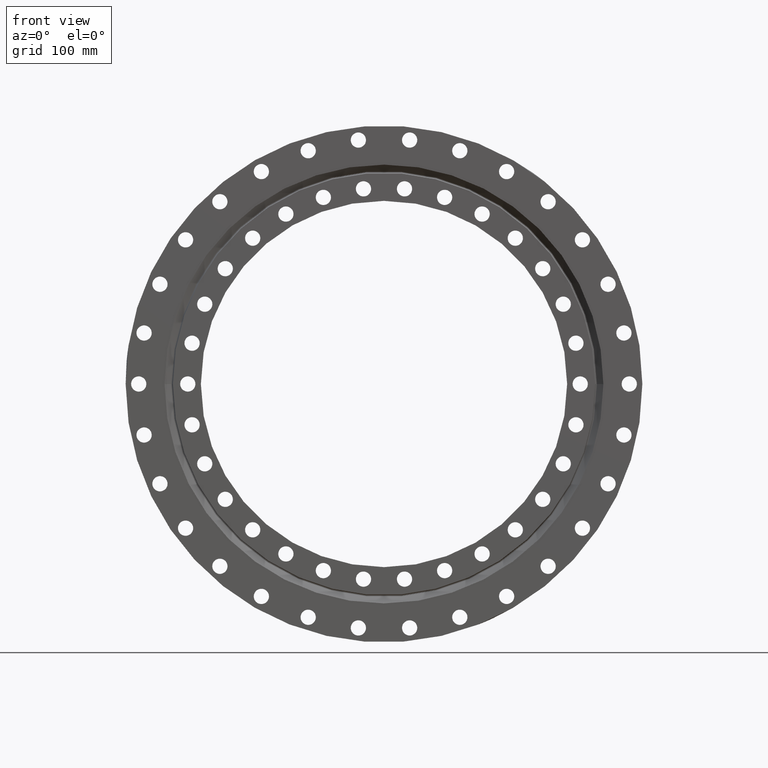
[diagram: clean part render]
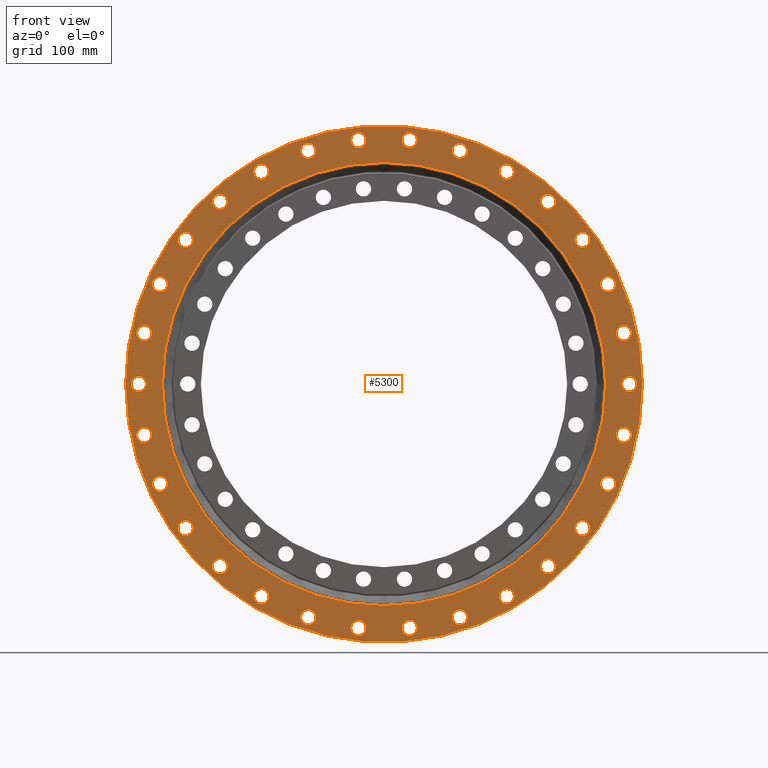
[diagram: same view with one face highlighted and labeled with its STEP entity id]
A machine part, front view. The second image highlights one B-rep face of the part: STEP entity #5300.
In plain terms, the highlighted planar face has unit normal (0, 1, 0).
Its self-contained STEP definition (entity closure, byte-faithful):
#12 = DIRECTION ( 'NONE',  ( 0.0000000000000000000, 1.000000000000000000, 0.0000000000000000000 ) ) ;
#16 = FACE_BOUND ( 'NONE', #5511, .T. ) ;
#19 = CARTESIAN_POINT ( 'NONE',  ( -212.5477279695850800, -23.00000000000001400, 91.51574469205549200 ) ) ;
#29 = AXIS2_PLACEMENT_3D ( 'NONE', #1742, #1889, #3534 ) ;
#56 = CIRCLE ( 'NONE', #4598, 6.999999999999981300 ) ;
#58 = CIRCLE ( 'NONE', #5604, 6.999999999999990200 ) ;
#76 = DIRECTION ( 'NONE',  ( 0.8090169943749511100, 0.0000000000000000000, -0.5877852522924680300 ) ) ;
#89 = FACE_BOUND ( 'NONE', #2477, .T. ) ;
#115 = FACE_BOUND ( 'NONE', #758, .T. ) ;
#118 = DIRECTION ( 'NONE',  ( 0.0000000000000000000, 1.000000000000000000, 0.0000000000000000000 ) ) ;
#128 = DIRECTION ( 'NONE',  ( 0.0000000000000000000, 1.000000000000000000, 0.0000000000000000000 ) ) ;
#143 = ORIENTED_EDGE ( 'NONE', *, *, #4676, .T. ) ;
#155 = FACE_BOUND ( 'NONE', #4595, .T. ) ;
#163 = FACE_BOUND ( 'NONE', #3980, .T. ) ;
#178 = FACE_BOUND ( 'NONE', #6239, .T. ) ;
#184 = FACE_BOUND ( 'NONE', #283, .T. ) ;
#188 = EDGE_CURVE ( 'NONE', #5920, #3882, #1013, .T. ) ;
#198 = VERTEX_POINT ( 'NONE', #6095 ) ;
#199 = ORIENTED_EDGE ( 'NONE', *, *, #1154, .T. ) ;
#203 = EDGE_CURVE ( 'NONE', #5819, #6373, #4315, .T. ) ;
#216 = DIRECTION ( 'NONE',  ( -0.6691306063588581300, 0.0000000000000000000, -0.7431448254773941300 ) ) ;
#220 = CARTESIAN_POINT ( 'NONE',  ( -119.5000000000023900, -23.00000000000001400, -194.8557158514973400 ) ) ;
#221 = FACE_BOUND ( 'NONE', #1783, .T. ) ;
#224 = CIRCLE ( 'NONE', #5636, 6.999999999999992000 ) ;
#225 = FACE_BOUND ( 'NONE', #7242, .T. ) ;
#228 = FACE_BOUND ( 'NONE', #6627, .T. ) ;
#229 = DIRECTION ( 'NONE',  ( 0.0000000000000000000, 1.000000000000000000, 0.0000000000000000000 ) ) ;
#232 = FACE_BOUND ( 'NONE', #5626, .T. ) ;
#233 = CARTESIAN_POINT ( 'NONE',  ( -150.5543864307452700, -23.00000000000001400, -167.2075857324117900 ) ) ;
#235 = FACE_BOUND ( 'NONE', #4024, .T. ) ;
#237 = DIRECTION ( 'NONE',  ( 0.0000000000000000000, 1.000000000000000000, 0.0000000000000000000 ) ) ;
#238 = CARTESIAN_POINT ( 'NONE',  ( -69.52882373436230500, -23.00000000000001400, 213.9877161664098300 ) ) ;
#243 = FACE_BOUND ( 'NONE', #1821, .T. ) ;
#244 = ORIENTED_EDGE ( 'NONE', *, *, #2044, .T. ) ;
#249 = FACE_BOUND ( 'NONE', #753, .T. ) ;
#251 = AXIS2_PLACEMENT_3D ( 'NONE', #2510, #1657, #2532 ) ;
#262 = CIRCLE ( 'NONE', #4697, 6.999999999999983100 ) ;
#269 = VERTEX_POINT ( 'NONE', #5905 ) ;
#275 = FACE_BOUND ( 'NONE', #616, .T. ) ;
#276 = EDGE_CURVE ( 'NONE', #3420, #4411, #4854, .T. ) ;
#283 = EDGE_LOOP ( 'NONE', ( #7147, #7272 ) ) ;
#287 = FACE_BOUND ( 'NONE', #2543, .T. ) ;
#290 = DIRECTION ( 'NONE',  ( 0.0000000000000000000, 1.000000000000000000, 0.0000000000000000000 ) ) ;
#293 = FACE_BOUND ( 'NONE', #2451, .T. ) ;
#298 = FACE_BOUND ( 'NONE', #4035, .T. ) ;
#309 = EDGE_CURVE ( 'NONE', #2335, #5018, #3687, .T. ) ;
#317 = DIRECTION ( 'NONE',  ( -0.9135454576426064200, 0.0000000000000000000, 0.4067366430757879400 ) ) ;
#321 = CARTESIAN_POINT ( 'NONE',  ( -205.5477279695850500, -23.00000000000001400, 91.51574469205549200 ) ) ;
#325 = DIRECTION ( 'NONE',  ( 0.0000000000000000000, 1.000000000000000000, 0.0000000000000000000 ) ) ;
#350 = FACE_BOUND ( 'NONE', #5022, .T. ) ;
#351 = CARTESIAN_POINT ( 'NONE',  ( -112.4999999999994500, -23.00000000000001400, 194.8557158514990100 ) ) ;
#354 = AXIS2_PLACEMENT_3D ( 'NONE', #4645, #4363, #4392 ) ;
#361 = AXIS2_PLACEMENT_3D ( 'NONE', #4042, #3958, #3948 ) ;
#362 = DIRECTION ( 'NONE',  ( -0.3090169943749564400, 0.0000000000000000000, 0.9510565162951506400 ) ) ;
#364 = AXIS2_PLACEMENT_3D ( 'NONE', #351, #3146, #4159 ) ;
#379 = CARTESIAN_POINT ( 'NONE',  ( 23.51890423522307600, -23.00000000000001400, 223.7674264578614000 ) ) ;
#382 = DIRECTION ( 'NONE',  ( 0.1045284632676436200, 0.0000000000000000000, 0.9945218953682744000 ) ) ;
#386 = ORIENTED_EDGE ( 'NONE', *, *, #6661, .T. ) ;
#388 = EDGE_CURVE ( 'NONE', #5339, #5926, #224, .T. ) ;
#390 = DIRECTION ( 'NONE',  ( 0.0000000000000000000, 1.000000000000000000, 0.0000000000000000000 ) ) ;
#409 = VERTEX_POINT ( 'NONE', #19 ) ;
#415 = CARTESIAN_POINT ( 'NONE',  ( -16.51890423522460300, -23.00000000000001400, -223.7674264578612900 ) ) ;
#462 = EDGE_CURVE ( 'NONE', #3639, #2593, #4586, .T. ) ;
#464 = CIRCLE ( 'NONE', #4783, 6.999999999999997300 ) ;
#470 = CARTESIAN_POINT ( 'NONE',  ( 198.5477279695858500, -23.00000000000001400, 91.51574469205360200 ) ) ;
#496 = VERTEX_POINT ( 'NONE', #3245 ) ;
#511 = CIRCLE ( 'NONE', #2926, 7.000000000000006200 ) ;
#516 = CIRCLE ( 'NONE', #5550, 6.999999999999993800 ) ;
#524 = CARTESIAN_POINT ( 'NONE',  ( -119.4999999999994500, -23.00000000000001400, 194.8557158514990100 ) ) ;
#525 = CARTESIAN_POINT ( 'NONE',  ( 16.51890423521959400, -23.00000000000001400, -223.7674264578617500 ) ) ;
#575 = DIRECTION ( 'NONE',  ( 0.0000000000000000000, 1.000000000000000000, 0.0000000000000000000 ) ) ;
#579 = ORIENTED_EDGE ( 'NONE', *, *, #4967, .T. ) ;
#582 = EDGE_LOOP ( 'NONE', ( #2032, #3148 ) ) ;
#584 = DIRECTION ( 'NONE',  ( 0.3090169943749391800, 0.0000000000000000000, 0.9510565162951562000 ) ) ;
#590 = CARTESIAN_POINT ( 'NONE',  ( 69.52882373436422400, -23.00000000000001400, 213.9877161664092000 ) ) ;
#616 = EDGE_LOOP ( 'NONE', ( #4091, #4623 ) ) ;
#622 = EDGE_CURVE ( 'NONE', #2593, #3639, #6958, .T. ) ;
#625 = CIRCLE ( 'NONE', #4982, 6.999999999999998200 ) ;
#638 = DIRECTION ( 'NONE',  ( 0.0000000000000000000, 1.000000000000000000, 0.0000000000000000000 ) ) ;
#639 = VERTEX_POINT ( 'NONE', #2708 ) ;
#658 = CIRCLE ( 'NONE', #5081, 6.999999999999995600 ) ;
#662 = CARTESIAN_POINT ( 'NONE',  ( -76.52882373436571600, -23.00000000000001400, -213.9877161664087500 ) ) ;
#686 = EDGE_CURVE ( 'NONE', #6385, #5605, #6680, .T. ) ;
#691 = AXIS2_PLACEMENT_3D ( 'NONE', #238, #4642, #362 ) ;
#719 = VERTEX_POINT ( 'NONE', #4265 ) ;
#728 = AXIS2_PLACEMENT_3D ( 'NONE', #3287, #4616, #7241 ) ;
#741 = AXIS2_PLACEMENT_3D ( 'NONE', #3588, #290, #6915 ) ;
#749 = CARTESIAN_POINT ( 'NONE',  ( 143.5543864307441000, -23.00000000000001400, 167.2075857324128100 ) ) ;
#753 = EDGE_LOOP ( 'NONE', ( #4365, #4369 ) ) ;
#757 = DIRECTION ( 'NONE',  ( -0.1045284632676636300, 0.0000000000000000000, 0.9945218953682721800 ) ) ;
#758 = EDGE_LOOP ( 'NONE', ( #6951, #6646 ) ) ;
#762 = DIRECTION ( 'NONE',  ( 0.0000000000000000000, 1.000000000000000000, 0.0000000000000000000 ) ) ;
#763 = CARTESIAN_POINT ( 'NONE',  ( -23.51890423522105100, -23.00000000000001400, 223.7674264578616000 ) ) ;
#858 = AXIS2_PLACEMENT_3D ( 'NONE', #3900, #3889, #2687 ) ;
#868 = ORIENTED_EDGE ( 'NONE', *, *, #4258, .T. ) ;
#900 = CARTESIAN_POINT ( 'NONE',  ( -198.5477279695850500, -23.00000000000001400, 91.51574469205549200 ) ) ;
#901 = AXIS2_PLACEMENT_3D ( 'NONE', #4583, #4171, #4502 ) ;
#926 = VERTEX_POINT ( 'NONE', #4740 ) ;
#968 = EDGE_CURVE ( 'NONE', #1182, #1699, #7009, .T. ) ;
#969 = DIRECTION ( 'NONE',  ( -0.3090169943749564400, 0.0000000000000000000, 0.9510565162951506400 ) ) ;
#987 = VERTEX_POINT ( 'NONE', #5401 ) ;
#991 = VERTEX_POINT ( 'NONE', #5464 ) ;
#996 = DIRECTION ( 'NONE',  ( 0.0000000000000000000, 1.000000000000000000, 0.0000000000000000000 ) ) ;
#1003 = CARTESIAN_POINT ( 'NONE',  ( 16.51890423522308600, -23.00000000000001400, 223.7674264578614000 ) ) ;
#1013 = CIRCLE ( 'NONE', #7071, 7.000000000000000900 ) ;
#1023 = CARTESIAN_POINT ( 'NONE',  ( 150.5543864307441300, -23.00000000000001400, 167.2075857324128100 ) ) ;
#1044 = VERTEX_POINT ( 'NONE', #6589 ) ;
#1049 = CIRCLE ( 'NONE', #5304, 6.999999999999992000 ) ;
#1057 = CARTESIAN_POINT ( 'NONE',  ( -69.52882373436230500, -23.00000000000001400, 213.9877161664098300 ) ) ;
#1101 = DIRECTION ( 'NONE',  ( 0.6691306063588519100, 0.0000000000000000000, 0.7431448254773999100 ) ) ;
#1104 = VERTEX_POINT ( 'NONE', #6847 ) ;
#1109 = EDGE_CURVE ( 'NONE', #3901, #5224, #6753, .T. ) ;
#1121 = EDGE_CURVE ( 'NONE', #4305, #3821, #3850, .T. ) ;
#1139 = AXIS2_PLACEMENT_3D ( 'NONE', #2996, #4267, #3615 ) ;
#1154 = EDGE_CURVE ( 'NONE', #5938, #6540, #5729, .T. ) ;
#1182 = VERTEX_POINT ( 'NONE', #6952 ) ;
#1198 = CARTESIAN_POINT ( 'NONE',  ( 157.5543864307441300, -23.00000000000001400, 167.2075857324128100 ) ) ;
#1224 = CARTESIAN_POINT ( 'NONE',  ( 62.52882373436095500, -23.00000000000001400, -213.9877161664102800 ) ) ;
#1227 = CIRCLE ( 'NONE', #5436, 6.999999999999983100 ) ;
#1231 = AXIS2_PLACEMENT_3D ( 'NONE', #4010, #7152, #7183 ) ;
#1241 = CIRCLE ( 'NONE', #6308, 7.000000000000001800 ) ;
#1251 = EDGE_CURVE ( 'NONE', #5224, #3901, #7061, .T. ) ;
#1282 = ORIENTED_EDGE ( 'NONE', *, *, #5694, .T. ) ;
#1291 = CARTESIAN_POINT ( 'NONE',  ( -30.51890423522104400, -23.00000000000001400, 223.7674264578616000 ) ) ;
#1304 = ORIENTED_EDGE ( 'NONE', *, *, #4243, .T. ) ;
#1308 = CARTESIAN_POINT ( 'NONE',  ( 69.52882373436095500, -23.00000000000001400, -213.9877161664102800 ) ) ;
#1330 = DIRECTION ( 'NONE',  ( 0.9135454576426033100, 0.0000000000000000000, -0.4067366430757943800 ) ) ;
#1340 = DIRECTION ( 'NONE',  ( 0.0000000000000000000, 1.000000000000000000, 0.0000000000000000000 ) ) ;
#1346 = CARTESIAN_POINT ( 'NONE',  ( 205.5477279695844300, -23.00000000000001400, -91.51574469205682800 ) ) ;
#1349 = CARTESIAN_POINT ( 'NONE',  ( 30.51890423522306900, -23.00000000000001400, 223.7674264578614000 ) ) ;
#1384 = VERTEX_POINT ( 'NONE', #2890 ) ;
#1393 = AXIS2_PLACEMENT_3D ( 'NONE', #4433, #4481, #4546 ) ;
#1401 = EDGE_CURVE ( 'NONE', #269, #639, #5449, .T. ) ;
#1423 = CARTESIAN_POINT ( 'NONE',  ( -213.0832101651061500, -23.00000000000001400, 46.78013043399624100 ) ) ;
#1424 = EDGE_CURVE ( 'NONE', #4652, #4736, #5334, .T. ) ;
#1431 = CIRCLE ( 'NONE', #6528, 6.999999999999998200 ) ;
#1436 = VERTEX_POINT ( 'NONE', #2940 ) ;
#1477 = EDGE_LOOP ( 'NONE', ( #3816, #2175 ) ) ;
#1486 = DIRECTION ( 'NONE',  ( -0.9781476007338083500, 0.0000000000000000000, 0.2079116908177463000 ) ) ;
#1504 = CIRCLE ( 'NONE', #6697, 6.999999999999992000 ) ;
#1505 = CARTESIAN_POINT ( 'NONE',  ( -112.5000000000023900, -23.00000000000001400, -194.8557158514973400 ) ) ;
#1519 = EDGE_CURVE ( 'NONE', #4647, #2367, #4929, .T. ) ;
#1525 = VERTEX_POINT ( 'NONE', #4151 ) ;
#1538 = VERTEX_POINT ( 'NONE', #1423 ) ;
#1565 = EDGE_LOOP ( 'NONE', ( #6771, #4661 ) ) ;
#1627 = VERTEX_POINT ( 'NONE', #1291 ) ;
#1630 = FACE_BOUND ( 'NONE', #1778, .T. ) ;
#1642 = CARTESIAN_POINT ( 'NONE',  ( -150.5543864307426800, -23.00000000000001400, 167.2075857324140900 ) ) ;
#1657 = DIRECTION ( 'NONE',  ( 0.0000000000000000000, 1.000000000000000000, 0.0000000000000000000 ) ) ;
#1660 = EDGE_LOOP ( 'NONE', ( #3574, #3655 ) ) ;
#1667 = ORIENTED_EDGE ( 'NONE', *, *, #2406, .T. ) ;
#1699 = VERTEX_POINT ( 'NONE', #4557 ) ;
#1704 = CIRCLE ( 'NONE', #6930, 6.999999999999980500 ) ;
#1733 = ORIENTED_EDGE ( 'NONE', *, *, #5071, .T. ) ;
#1736 = EDGE_CURVE ( 'NONE', #3381, #987, #3493, .T. ) ;
#1738 = ORIENTED_EDGE ( 'NONE', *, *, #3205, .T. ) ;
#1742 = CARTESIAN_POINT ( 'NONE',  ( -182.0288237343628500, -23.00000000000001400, 132.2516817658068600 ) ) ;
#1758 = FACE_BOUND ( 'NONE', #1477, .T. ) ;
#1778 = EDGE_LOOP ( 'NONE', ( #5814, #1949 ) ) ;
#1783 = EDGE_LOOP ( 'NONE', ( #244, #4806 ) ) ;
#1786 = CIRCLE ( 'NONE', #7038, 7.000000000000006200 ) ;
#1790 = CARTESIAN_POINT ( 'NONE',  ( -220.0832101651061500, -23.00000000000001400, 46.78013043399624100 ) ) ;
#1802 = AXIS2_PLACEMENT_3D ( 'NONE', #5893, #5861, #5868 ) ;
#1811 = EDGE_CURVE ( 'NONE', #4511, #3961, #3308, .T. ) ;
#1817 = EDGE_CURVE ( 'NONE', #4116, #6575, #3248, .T. ) ;
#1821 = EDGE_LOOP ( 'NONE', ( #4269, #2436 ) ) ;
#1823 = AXIS2_PLACEMENT_3D ( 'NONE', #5904, #5897, #5892 ) ;
#1837 = AXIS2_PLACEMENT_3D ( 'NONE', #6131, #6157, #6168 ) ;
#1889 = DIRECTION ( 'NONE',  ( 0.0000000000000000000, 1.000000000000000000, 0.0000000000000000000 ) ) ;
#1892 = DIRECTION ( 'NONE',  ( 0.0000000000000000000, 1.000000000000000000, 0.0000000000000000000 ) ) ;
#1896 = FACE_BOUND ( 'NONE', #2151, .T. ) ;
#1898 = DIRECTION ( 'NONE',  ( -0.6691306063588581300, 0.0000000000000000000, -0.7431448254773941300 ) ) ;
#1917 = CARTESIAN_POINT ( 'NONE',  ( -205.5477279695864500, -23.00000000000001400, -91.51574469205225200 ) ) ;
#1921 = CARTESIAN_POINT ( 'NONE',  ( -182.0288237343628500, -23.00000000000001400, 132.2516817658068600 ) ) ;
#1927 = DIRECTION ( 'NONE',  ( -0.9135454576426005300, 0.0000000000000000000, -0.4067366430758008700 ) ) ;
#1929 = CARTESIAN_POINT ( 'NONE',  ( 227.0832101651058400, -23.00000000000001400, -46.78013043399769100 ) ) ;
#1935 = EDGE_CURVE ( 'NONE', #5926, #5339, #2527, .T. ) ;
#1937 = CIRCLE ( 'NONE', #7286, 6.999999999999992900 ) ;
#1939 = DIRECTION ( 'NONE',  ( -0.8090169943749543300, 0.0000000000000000000, 0.5877852522924635900 ) ) ;
#1949 = ORIENTED_EDGE ( 'NONE', *, *, #1401, .T. ) ;
#1958 = DIRECTION ( 'NONE',  ( 0.0000000000000000000, 1.000000000000000000, 0.0000000000000000000 ) ) ;
#1967 = EDGE_CURVE ( 'NONE', #2682, #991, #2454, .T. ) ;
#1968 = DIRECTION ( 'NONE',  ( 0.0000000000000000000, 1.000000000000000000, 0.0000000000000000000 ) ) ;
#1988 = CIRCLE ( 'NONE', #6200, 6.999999999999984900 ) ;
#2006 = CARTESIAN_POINT ( 'NONE',  ( -182.0288237343649200, -23.00000000000001400, -132.2516817658040500 ) ) ;
#2032 = ORIENTED_EDGE ( 'NONE', *, *, #3125, .T. ) ;
#2037 = CIRCLE ( 'NONE', #6360, 203.2500000000000000 ) ;
#2043 = DIRECTION ( 'NONE',  ( 0.0000000000000000000, 1.000000000000000000, 0.0000000000000000000 ) ) ;
#2044 = EDGE_CURVE ( 'NONE', #6575, #4116, #2037, .T. ) ;
#2052 = CARTESIAN_POINT ( 'NONE',  ( -23.51890423522105100, -23.00000000000001400, 223.7674264578616000 ) ) ;
#2057 = FACE_OUTER_BOUND ( 'NONE', #1565, .T. ) ;
#2075 = DIRECTION ( 'NONE',  ( -0.1045284632676636300, 0.0000000000000000000, 0.9945218953682721800 ) ) ;
#2083 = EDGE_CURVE ( 'NONE', #6373, #5819, #1988, .T. ) ;
#2113 = CARTESIAN_POINT ( 'NONE',  ( 62.52882373436423100, -23.00000000000001400, 213.9877161664092000 ) ) ;
#2137 = AXIS2_PLACEMENT_3D ( 'NONE', #1505, #6087, #6086 ) ;
#2151 = EDGE_LOOP ( 'NONE', ( #868, #386 ) ) ;
#2158 = CIRCLE ( 'NONE', #251, 7.000000000000006200 ) ;
#2175 = ORIENTED_EDGE ( 'NONE', *, *, #2254, .T. ) ;
#2183 = AXIS2_PLACEMENT_3D ( 'NONE', #6245, #6234, #6241 ) ;
#2234 = CARTESIAN_POINT ( 'NONE',  ( 203.2500000000000000, -23.00000000000000700, 2.489094619266995000E-014 ) ) ;
#2235 = CIRCLE ( 'NONE', #364, 6.999999999999988500 ) ;
#2246 = DIRECTION ( 'NONE',  ( 0.3090169943749510600, 0.0000000000000000000, -0.9510565162951523100 ) ) ;
#2250 = DIRECTION ( 'NONE',  ( 0.0000000000000000000, 1.000000000000000000, 0.0000000000000000000 ) ) ;
#2254 = EDGE_CURVE ( 'NONE', #3179, #1627, #1227, .T. ) ;
#2268 = CARTESIAN_POINT ( 'NONE',  ( 0.0000000000000000000, -23.00000000000000700, 0.0000000000000000000 ) ) ;
#2270 = DIRECTION ( 'NONE',  ( 0.0000000000000000000, 1.000000000000000000, 0.0000000000000000000 ) ) ;
#2301 = CARTESIAN_POINT ( 'NONE',  ( -105.5000000000024000, -23.00000000000001400, -194.8557158514973400 ) ) ;
#2302 = FACE_BOUND ( 'NONE', #2925, .T. ) ;
#2303 = EDGE_CURVE ( 'NONE', #2537, #719, #1049, .T. ) ;
#2335 = VERTEX_POINT ( 'NONE', #525 ) ;
#2352 = DIRECTION ( 'NONE',  ( 0.0000000000000000000, 1.000000000000000000, 0.0000000000000000000 ) ) ;
#2362 = VERTEX_POINT ( 'NONE', #524 ) ;
#2367 = VERTEX_POINT ( 'NONE', #662 ) ;
#2378 = PLANE ( 'NONE',  #5094 ) ;
#2406 = EDGE_CURVE ( 'NONE', #6540, #5938, #658, .T. ) ;
#2422 = EDGE_CURVE ( 'NONE', #6066, #409, #625, .T. ) ;
#2436 = ORIENTED_EDGE ( 'NONE', *, *, #188, .T. ) ;
#2439 = DIRECTION ( 'NONE',  ( 0.0000000000000000000, 1.000000000000000000, 0.0000000000000000000 ) ) ;
#2441 = DIRECTION ( 'NONE',  ( 0.6691306063588624600, 0.0000000000000000000, -0.7431448254773905800 ) ) ;
#2446 = CARTESIAN_POINT ( 'NONE',  ( 150.5543864307414900, -23.00000000000001400, -167.2075857324151400 ) ) ;
#2451 = EDGE_LOOP ( 'NONE', ( #5424, #5203 ) ) ;
#2454 = CIRCLE ( 'NONE', #6475, 6.999999999999997300 ) ;
#2477 = EDGE_LOOP ( 'NONE', ( #6334, #6856 ) ) ;
#2487 = DIRECTION ( 'NONE',  ( -0.3090169943749445100, 0.0000000000000000000, -0.9510565162951545300 ) ) ;
#2496 = CARTESIAN_POINT ( 'NONE',  ( -150.5543864307452700, -23.00000000000001400, -167.2075857324117900 ) ) ;
#2497 = EDGE_CURVE ( 'NONE', #991, #2682, #464, .T. ) ;
#2506 = VERTEX_POINT ( 'NONE', #220 ) ;
#2508 = DIRECTION ( 'NONE',  ( 0.0000000000000000000, 1.000000000000000000, 0.0000000000000000000 ) ) ;
#2510 = CARTESIAN_POINT ( 'NONE',  ( 225.0000000000000000, -23.00000000000001400, -1.703991320164801800E-012 ) ) ;
#2516 = CARTESIAN_POINT ( 'NONE',  ( -69.52882373436573000, -23.00000000000001400, -213.9877161664087500 ) ) ;
#2524 = AXIS2_PLACEMENT_3D ( 'NONE', #6872, #6880, #6849 ) ;
#2527 = CIRCLE ( 'NONE', #6605, 6.999999999999992000 ) ;
#2532 = DIRECTION ( 'NONE',  ( 1.000000000000000000, 0.0000000000000000000, 6.982962677686261200E-015 ) ) ;
#2535 = EDGE_CURVE ( 'NONE', #1627, #3179, #262, .T. ) ;
#2537 = VERTEX_POINT ( 'NONE', #2113 ) ;
#2543 = EDGE_LOOP ( 'NONE', ( #5529, #5230 ) ) ;
#2572 = AXIS2_PLACEMENT_3D ( 'NONE', #7188, #7161, #7171 ) ;
#2583 = CARTESIAN_POINT ( 'NONE',  ( 220.0832101651058700, -23.00000000000001400, -46.78013043399769100 ) ) ;
#2587 = EDGE_CURVE ( 'NONE', #987, #3381, #56, .T. ) ;
#2593 = VERTEX_POINT ( 'NONE', #3451 ) ;
#2603 = DIRECTION ( 'NONE',  ( 0.0000000000000000000, 1.000000000000000000, 0.0000000000000000000 ) ) ;
#2619 = CARTESIAN_POINT ( 'NONE',  ( -205.5477279695864500, -23.00000000000001400, -91.51574469205225200 ) ) ;
#2636 = DIRECTION ( 'NONE',  ( 0.0000000000000000000, 1.000000000000000000, 0.0000000000000000000 ) ) ;
#2644 = FACE_BOUND ( 'NONE', #1660, .T. ) ;
#2654 = AXIS2_PLACEMENT_3D ( 'NONE', #7074, #7058, #7065 ) ;
#2666 = CIRCLE ( 'NONE', #691, 7.000000000000004400 ) ;
#2677 = CIRCLE ( 'NONE', #741, 6.999999999999980500 ) ;
#2678 = VERTEX_POINT ( 'NONE', #3184 ) ;
#2682 = VERTEX_POINT ( 'NONE', #3218 ) ;
#2687 = DIRECTION ( 'NONE',  ( -1.000000000000000000, 0.0000000000000000000, 0.0000000000000000000 ) ) ;
#2690 = CARTESIAN_POINT ( 'NONE',  ( 105.4999999999981100, -23.00000000000001400, -194.8557158514998700 ) ) ;
#2701 = AXIS2_PLACEMENT_3D ( 'NONE', #7107, #7117, #7099 ) ;
#2708 = CARTESIAN_POINT ( 'NONE',  ( -189.0288237343628700, -23.00000000000001400, 132.2516817658068600 ) ) ;
#2718 = FACE_BOUND ( 'NONE', #4605, .T. ) ;
#2730 = CARTESIAN_POINT ( 'NONE',  ( 69.52882373436095500, -23.00000000000001400, -213.9877161664102800 ) ) ;
#2752 = CIRCLE ( 'NONE', #728, 6.999999999999992000 ) ;
#2758 = CIRCLE ( 'NONE', #901, 7.000000000000006200 ) ;
#2781 = AXIS2_PLACEMENT_3D ( 'NONE', #7231, #7208, #7215 ) ;
#2853 = ORIENTED_EDGE ( 'NONE', *, *, #203, .T. ) ;
#2856 = DIRECTION ( 'NONE',  ( -0.5000000000000112100, 0.0000000000000000000, 0.8660254037844322700 ) ) ;
#2862 = DIRECTION ( 'NONE',  ( 0.5000000000000048800, 0.0000000000000000000, -0.8660254037844357100 ) ) ;
#2864 = CARTESIAN_POINT ( 'NONE',  ( -112.4999999999994500, -23.00000000000001400, 194.8557158514990100 ) ) ;
#2865 = DIRECTION ( 'NONE',  ( 0.0000000000000000000, 1.000000000000000000, 0.0000000000000000000 ) ) ;
#2890 = CARTESIAN_POINT ( 'NONE',  ( -227.0832101651061200, -23.00000000000001400, 46.78013043399624100 ) ) ;
#2913 = CARTESIAN_POINT ( 'NONE',  ( 112.4999999999981000, -23.00000000000001400, -194.8557158514998700 ) ) ;
#2914 = CARTESIAN_POINT ( 'NONE',  ( -62.52882373436573000, -23.00000000000001400, -213.9877161664087500 ) ) ;
#2915 = CIRCLE ( 'NONE', #1139, 7.000000000000004400 ) ;
#2925 = EDGE_LOOP ( 'NONE', ( #6637, #6155 ) ) ;
#2926 = AXIS2_PLACEMENT_3D ( 'NONE', #7210, #7239, #5386 ) ;
#2929 = DIRECTION ( 'NONE',  ( 0.0000000000000000000, 1.000000000000000000, 0.0000000000000000000 ) ) ;
#2934 = EDGE_CURVE ( 'NONE', #3648, #2362, #6505, .T. ) ;
#2938 = AXIS2_PLACEMENT_3D ( 'NONE', #4405, #6221, #7140 ) ;
#2940 = CARTESIAN_POINT ( 'NONE',  ( 175.0288237343639800, -23.00000000000001400, 132.2516817658053300 ) ) ;
#2964 = AXIS2_PLACEMENT_3D ( 'NONE', #5535, #5546, #5518 ) ;
#2972 = CARTESIAN_POINT ( 'NONE',  ( 143.5543864307414900, -23.00000000000001400, -167.2075857324151400 ) ) ;
#2996 = CARTESIAN_POINT ( 'NONE',  ( 182.0288237343639800, -23.00000000000001400, 132.2516817658053300 ) ) ;
#2997 = EDGE_LOOP ( 'NONE', ( #1733, #4212 ) ) ;
#3035 = ORIENTED_EDGE ( 'NONE', *, *, #4865, .T. ) ;
#3098 = CARTESIAN_POINT ( 'NONE',  ( 213.0832101651058700, -23.00000000000001400, -46.78013043399769100 ) ) ;
#3115 = EDGE_CURVE ( 'NONE', #5605, #6385, #6230, .T. ) ;
#3116 = DIRECTION ( 'NONE',  ( 0.0000000000000000000, 1.000000000000000000, 0.0000000000000000000 ) ) ;
#3119 = AXIS2_PLACEMENT_3D ( 'NONE', #5075, #237, #6448 ) ;
#3125 = EDGE_CURVE ( 'NONE', #198, #7082, #6199, .T. ) ;
#3132 = AXIS2_PLACEMENT_3D ( 'NONE', #5402, #5411, #5419 ) ;
#3146 = DIRECTION ( 'NONE',  ( 0.0000000000000000000, 1.000000000000000000, 0.0000000000000000000 ) ) ;
#3148 = ORIENTED_EDGE ( 'NONE', *, *, #4249, .T. ) ;
#3178 = AXIS2_PLACEMENT_3D ( 'NONE', #2446, #2439, #2441 ) ;
#3179 = VERTEX_POINT ( 'NONE', #4684 ) ;
#3184 = CARTESIAN_POINT ( 'NONE',  ( 198.5477279695844300, -23.00000000000001400, -91.51574469205682800 ) ) ;
#3198 = AXIS2_PLACEMENT_3D ( 'NONE', #1057, #3116, #969 ) ;
#3205 = EDGE_CURVE ( 'NONE', #5018, #2335, #6104, .T. ) ;
#3218 = CARTESIAN_POINT ( 'NONE',  ( -157.5543864307452700, -23.00000000000001400, -167.2075857324117900 ) ) ;
#3245 = CARTESIAN_POINT ( 'NONE',  ( -62.52882373436231900, -23.00000000000001400, 213.9877161664098300 ) ) ;
#3248 = CIRCLE ( 'NONE', #7129, 203.2500000000000000 ) ;
#3255 = DIRECTION ( 'NONE',  ( -0.9135454576426064200, 0.0000000000000000000, 0.4067366430757879400 ) ) ;
#3257 = EDGE_CURVE ( 'NONE', #2506, #5364, #5807, .T. ) ;
#3267 = EDGE_CURVE ( 'NONE', #3961, #4511, #5975, .T. ) ;
#3272 = AXIS2_PLACEMENT_3D ( 'NONE', #2864, #2865, #2856 ) ;
#3287 = CARTESIAN_POINT ( 'NONE',  ( 112.5000000000010100, -23.00000000000001400, 194.8557158514981000 ) ) ;
#3303 = EDGE_CURVE ( 'NONE', #4736, #4652, #5774, .T. ) ;
#3304 = ORIENTED_EDGE ( 'NONE', *, *, #7096, .T. ) ;
#3308 = CIRCLE ( 'NONE', #7177, 6.999999999999994700 ) ;
#3373 = CARTESIAN_POINT ( 'NONE',  ( -203.2500000000000000, -23.00000000000000700, 0.0000000000000000000 ) ) ;
#3380 = CIRCLE ( 'NONE', #1231, 6.999999999999990200 ) ;
#3381 = VERTEX_POINT ( 'NONE', #6619 ) ;
#3420 = VERTEX_POINT ( 'NONE', #6494 ) ;
#3451 = CARTESIAN_POINT ( 'NONE',  ( 237.0000000000000000, -23.00000000000001400, 2.902412913979226800E-014 ) ) ;
#3456 = DIRECTION ( 'NONE',  ( 0.0000000000000000000, 1.000000000000000000, 0.0000000000000000000 ) ) ;
#3474 = CIRCLE ( 'NONE', #1393, 7.000000000000000900 ) ;
#3484 = EDGE_CURVE ( 'NONE', #4395, #926, #5059, .T. ) ;
#3493 = CIRCLE ( 'NONE', #7229, 6.999999999999981300 ) ;
#3503 = CARTESIAN_POINT ( 'NONE',  ( 119.4999999999981000, -23.00000000000001400, -194.8557158514998700 ) ) ;
#3518 = FACE_BOUND ( 'NONE', #5279, .T. ) ;
#3519 = EDGE_CURVE ( 'NONE', #5364, #2506, #4954, .T. ) ;
#3524 = DIRECTION ( 'NONE',  ( 0.3090169943749510600, 0.0000000000000000000, -0.9510565162951523100 ) ) ;
#3534 = DIRECTION ( 'NONE',  ( -0.8090169943749543300, 0.0000000000000000000, 0.5877852522924635900 ) ) ;
#3539 = DIRECTION ( 'NONE',  ( 0.0000000000000000000, 1.000000000000000000, 0.0000000000000000000 ) ) ;
#3547 = CARTESIAN_POINT ( 'NONE',  ( -205.5477279695850500, -23.00000000000001400, 91.51574469205549200 ) ) ;
#3552 = ORIENTED_EDGE ( 'NONE', *, *, #2303, .T. ) ;
#3557 = VERTEX_POINT ( 'NONE', #6146 ) ;
#3574 = ORIENTED_EDGE ( 'NONE', *, *, #5023, .T. ) ;
#3588 = CARTESIAN_POINT ( 'NONE',  ( 150.5543864307441300, -23.00000000000001400, 167.2075857324128100 ) ) ;
#3615 = DIRECTION ( 'NONE',  ( 0.8090169943749427900, 0.0000000000000000000, 0.5877852522924795800 ) ) ;
#3632 = CARTESIAN_POINT ( 'NONE',  ( 30.51890423521958000, -23.00000000000001400, -223.7674264578617500 ) ) ;
#3639 = VERTEX_POINT ( 'NONE', #5805 ) ;
#3648 = VERTEX_POINT ( 'NONE', #5769 ) ;
#3655 = ORIENTED_EDGE ( 'NONE', *, *, #2422, .T. ) ;
#3656 = CARTESIAN_POINT ( 'NONE',  ( 69.52882373436422400, -23.00000000000001400, 213.9877161664092000 ) ) ;
#3687 = CIRCLE ( 'NONE', #3814, 7.000000000000005300 ) ;
#3697 = FACE_BOUND ( 'NONE', #5477, .T. ) ;
#3712 = EDGE_CURVE ( 'NONE', #1538, #1384, #4344, .T. ) ;
#3716 = EDGE_CURVE ( 'NONE', #1104, #1525, #4340, .T. ) ;
#3727 = ORIENTED_EDGE ( 'NONE', *, *, #388, .T. ) ;
#3732 = VERTEX_POINT ( 'NONE', #5914 ) ;
#3783 = CIRCLE ( 'NONE', #6699, 7.000000000000004400 ) ;
#3814 = AXIS2_PLACEMENT_3D ( 'NONE', #6541, #6584, #7011 ) ;
#3816 = ORIENTED_EDGE ( 'NONE', *, *, #2535, .T. ) ;
#3821 = VERTEX_POINT ( 'NONE', #6144 ) ;
#3847 = CIRCLE ( 'NONE', #6821, 7.000000000000004400 ) ;
#3850 = CIRCLE ( 'NONE', #3966, 7.000000000000006200 ) ;
#3882 = VERTEX_POINT ( 'NONE', #6787 ) ;
#3885 = CIRCLE ( 'NONE', #7138, 7.000000000000004400 ) ;
#3889 = DIRECTION ( 'NONE',  ( 0.0000000000000000000, 1.000000000000000000, 0.0000000000000000000 ) ) ;
#3900 = CARTESIAN_POINT ( 'NONE',  ( 0.0000000000000000000, -23.00000000000001400, 0.0000000000000000000 ) ) ;
#3901 = VERTEX_POINT ( 'NONE', #5020 ) ;
#3948 = DIRECTION ( 'NONE',  ( -1.000000000000000000, 0.0000000000000000000, 0.0000000000000000000 ) ) ;
#3958 = DIRECTION ( 'NONE',  ( 0.0000000000000000000, 1.000000000000000000, 0.0000000000000000000 ) ) ;
#3961 = VERTEX_POINT ( 'NONE', #4869 ) ;
#3966 = AXIS2_PLACEMENT_3D ( 'NONE', #6972, #6978, #6980 ) ;
#3980 = EDGE_LOOP ( 'NONE', ( #6169, #2853 ) ) ;
#4010 = CARTESIAN_POINT ( 'NONE',  ( 205.5477279695844300, -23.00000000000001400, -91.51574469205682800 ) ) ;
#4024 = EDGE_LOOP ( 'NONE', ( #6244, #1738 ) ) ;
#4034 = EDGE_CURVE ( 'NONE', #3882, #5920, #3474, .T. ) ;
#4035 = EDGE_LOOP ( 'NONE', ( #5297, #5627 ) ) ;
#4042 = CARTESIAN_POINT ( 'NONE',  ( 0.0000000000000000000, -23.00000000000001400, 0.0000000000000000000 ) ) ;
#4091 = ORIENTED_EDGE ( 'NONE', *, *, #5252, .T. ) ;
#4114 = EDGE_CURVE ( 'NONE', #2678, #7220, #3380, .T. ) ;
#4116 = VERTEX_POINT ( 'NONE', #2234 ) ;
#4146 = EDGE_CURVE ( 'NONE', #1436, #6885, #2915, .T. ) ;
#4151 = CARTESIAN_POINT ( 'NONE',  ( 213.0832101651066100, -23.00000000000001400, 46.78013043399424500 ) ) ;
#4159 = DIRECTION ( 'NONE',  ( -0.5000000000000112100, 0.0000000000000000000, 0.8660254037844322700 ) ) ;
#4171 = DIRECTION ( 'NONE',  ( 0.0000000000000000000, 1.000000000000000000, 0.0000000000000000000 ) ) ;
#4178 = DIRECTION ( 'NONE',  ( 0.0000000000000000000, 1.000000000000000000, 0.0000000000000000000 ) ) ;
#4187 = DIRECTION ( 'NONE',  ( -0.8090169943749477800, 0.0000000000000000000, -0.5877852522924725800 ) ) ;
#4199 = DIRECTION ( 'NONE',  ( 0.0000000000000000000, 1.000000000000000000, 0.0000000000000000000 ) ) ;
#4208 = CARTESIAN_POINT ( 'NONE',  ( 0.0000000000000000000, -23.00000000000000700, 0.0000000000000000000 ) ) ;
#4212 = ORIENTED_EDGE ( 'NONE', *, *, #3712, .T. ) ;
#4219 = DIRECTION ( 'NONE',  ( -1.000000000000000000, 0.0000000000000000000, 0.0000000000000000000 ) ) ;
#4238 = EDGE_CURVE ( 'NONE', #3821, #4305, #2758, .T. ) ;
#4243 = EDGE_CURVE ( 'NONE', #6673, #6659, #2677, .T. ) ;
#4249 = EDGE_CURVE ( 'NONE', #7082, #198, #2752, .T. ) ;
#4258 = EDGE_CURVE ( 'NONE', #3732, #496, #2666, .T. ) ;
#4265 = CARTESIAN_POINT ( 'NONE',  ( 76.52882373436422400, -23.00000000000001400, 213.9877161664092000 ) ) ;
#4267 = DIRECTION ( 'NONE',  ( 0.0000000000000000000, 1.000000000000000000, 0.0000000000000000000 ) ) ;
#4269 = ORIENTED_EDGE ( 'NONE', *, *, #4034, .T. ) ;
#4281 = DIRECTION ( 'NONE',  ( -1.000000000000000000, 0.0000000000000000000, 0.0000000000000000000 ) ) ;
#4282 = ORIENTED_EDGE ( 'NONE', *, *, #4486, .T. ) ;
#4305 = VERTEX_POINT ( 'NONE', #5993 ) ;
#4315 = CIRCLE ( 'NONE', #1837, 6.999999999999984900 ) ;
#4340 = CIRCLE ( 'NONE', #1802, 7.000000000000002700 ) ;
#4344 = CIRCLE ( 'NONE', #1823, 7.000000000000001800 ) ;
#4350 = DIRECTION ( 'NONE',  ( 0.9781476007338068000, 0.0000000000000000000, -0.2079116908177537600 ) ) ;
#4363 = DIRECTION ( 'NONE',  ( 0.0000000000000000000, 1.000000000000000000, 0.0000000000000000000 ) ) ;
#4365 = ORIENTED_EDGE ( 'NONE', *, *, #7150, .T. ) ;
#4369 = ORIENTED_EDGE ( 'NONE', *, *, #1519, .T. ) ;
#4392 = DIRECTION ( 'NONE',  ( 0.9135454576425975400, 0.0000000000000000000, 0.4067366430758074200 ) ) ;
#4395 = VERTEX_POINT ( 'NONE', #6107 ) ;
#4405 = CARTESIAN_POINT ( 'NONE',  ( 112.5000000000010100, -23.00000000000001400, 194.8557158514981000 ) ) ;
#4411 = VERTEX_POINT ( 'NONE', #470 ) ;
#4433 = CARTESIAN_POINT ( 'NONE',  ( -23.51890423522459600, -23.00000000000001400, -223.7674264578612900 ) ) ;
#4450 = ORIENTED_EDGE ( 'NONE', *, *, #3519, .T. ) ;
#4481 = DIRECTION ( 'NONE',  ( 0.0000000000000000000, 1.000000000000000000, 0.0000000000000000000 ) ) ;
#4486 = EDGE_CURVE ( 'NONE', #2362, #3648, #2235, .T. ) ;
#4502 = DIRECTION ( 'NONE',  ( -1.000000000000000000, 0.0000000000000000000, 0.0000000000000000000 ) ) ;
#4511 = VERTEX_POINT ( 'NONE', #4590 ) ;
#4535 = DIRECTION ( 'NONE',  ( -0.9135454576426005300, 0.0000000000000000000, -0.4067366430758008700 ) ) ;
#4546 = DIRECTION ( 'NONE',  ( -0.1045284632676504900, 0.0000000000000000000, -0.9945218953682736200 ) ) ;
#4547 = EDGE_CURVE ( 'NONE', #1044, #3557, #2158, .T. ) ;
#4557 = CARTESIAN_POINT ( 'NONE',  ( -157.5543864307426800, -23.00000000000001400, 167.2075857324140900 ) ) ;
#4563 = CARTESIAN_POINT ( 'NONE',  ( 189.0288237343640100, -23.00000000000001400, 132.2516817658053300 ) ) ;
#4571 = CARTESIAN_POINT ( 'NONE',  ( 157.5543864307414900, -23.00000000000001400, -167.2075857324151400 ) ) ;
#4583 = CARTESIAN_POINT ( 'NONE',  ( -225.0000000000000000, -23.00000000000001400, 3.275157922644211800E-012 ) ) ;
#4586 = CIRCLE ( 'NONE', #361, 237.0000000000000000 ) ;
#4590 = CARTESIAN_POINT ( 'NONE',  ( -189.0288237343649200, -23.00000000000001400, -132.2516817658040500 ) ) ;
#4595 = EDGE_LOOP ( 'NONE', ( #1282, #6238 ) ) ;
#4598 = AXIS2_PLACEMENT_3D ( 'NONE', #2619, #2636, #4535 ) ;
#4605 = EDGE_LOOP ( 'NONE', ( #3552, #579 ) ) ;
#4616 = DIRECTION ( 'NONE',  ( 0.0000000000000000000, 1.000000000000000000, 0.0000000000000000000 ) ) ;
#4623 = ORIENTED_EDGE ( 'NONE', *, *, #3484, .T. ) ;
#4642 = DIRECTION ( 'NONE',  ( 0.0000000000000000000, 1.000000000000000000, 0.0000000000000000000 ) ) ;
#4645 = CARTESIAN_POINT ( 'NONE',  ( 205.5477279695858800, -23.00000000000001400, 91.51574469205360200 ) ) ;
#4647 = VERTEX_POINT ( 'NONE', #2914 ) ;
#4652 = VERTEX_POINT ( 'NONE', #3503 ) ;
#4661 = ORIENTED_EDGE ( 'NONE', *, *, #622, .F. ) ;
#4676 = EDGE_CURVE ( 'NONE', #1699, #1182, #1937, .T. ) ;
#4684 = CARTESIAN_POINT ( 'NONE',  ( -16.51890423522105800, -23.00000000000001400, 223.7674264578616000 ) ) ;
#4697 = AXIS2_PLACEMENT_3D ( 'NONE', #2052, #2043, #2075 ) ;
#4707 = EDGE_LOOP ( 'NONE', ( #1304, #3035 ) ) ;
#4724 = ORIENTED_EDGE ( 'NONE', *, *, #3257, .T. ) ;
#4728 = AXIS2_PLACEMENT_3D ( 'NONE', #6962, #128, #76 ) ;
#4736 = VERTEX_POINT ( 'NONE', #2690 ) ;
#4740 = CARTESIAN_POINT ( 'NONE',  ( -227.0832101651069800, -23.00000000000001400, -46.78013043399274600 ) ) ;
#4783 = AXIS2_PLACEMENT_3D ( 'NONE', #233, #229, #216 ) ;
#4806 = ORIENTED_EDGE ( 'NONE', *, *, #1817, .T. ) ;
#4815 = EDGE_CURVE ( 'NONE', #639, #269, #1786, .T. ) ;
#4854 = CIRCLE ( 'NONE', #354, 7.000000000000004400 ) ;
#4865 = EDGE_CURVE ( 'NONE', #6659, #6673, #1704, .T. ) ;
#4869 = CARTESIAN_POINT ( 'NONE',  ( -175.0288237343648900, -23.00000000000001400, -132.2516817658040500 ) ) ;
#4929 = CIRCLE ( 'NONE', #5011, 7.000000000000004400 ) ;
#4954 = CIRCLE ( 'NONE', #2137, 6.999999999999995600 ) ;
#4967 = EDGE_CURVE ( 'NONE', #719, #2537, #1504, .T. ) ;
#4981 = ORIENTED_EDGE ( 'NONE', *, *, #968, .T. ) ;
#4982 = AXIS2_PLACEMENT_3D ( 'NONE', #321, #325, #317 ) ;
#5011 = AXIS2_PLACEMENT_3D ( 'NONE', #2516, #2508, #2487 ) ;
#5018 = VERTEX_POINT ( 'NONE', #3632 ) ;
#5020 = CARTESIAN_POINT ( 'NONE',  ( 175.0288237343619600, -23.00000000000001400, -132.2516817658081400 ) ) ;
#5022 = EDGE_LOOP ( 'NONE', ( #4724, #4450 ) ) ;
#5023 = EDGE_CURVE ( 'NONE', #409, #6066, #1431, .T. ) ;
#5058 = CARTESIAN_POINT ( 'NONE',  ( -220.0832101651069500, -23.00000000000001400, -46.78013043399274600 ) ) ;
#5059 = CIRCLE ( 'NONE', #2183, 6.999999999999993800 ) ;
#5067 = DIRECTION ( 'NONE',  ( -0.9781476007338055800, 0.0000000000000000000, -0.2079116908177594300 ) ) ;
#5071 = EDGE_CURVE ( 'NONE', #1384, #1538, #1241, .T. ) ;
#5075 = CARTESIAN_POINT ( 'NONE',  ( 182.0288237343619400, -23.00000000000001400, -132.2516817658081400 ) ) ;
#5081 = AXIS2_PLACEMENT_3D ( 'NONE', #379, #638, #382 ) ;
#5094 = AXIS2_PLACEMENT_3D ( 'NONE', #6523, #2270, #7165 ) ;
#5121 = FACE_BOUND ( 'NONE', #4707, .T. ) ;
#5154 = DIRECTION ( 'NONE',  ( 0.3090169943749391800, 0.0000000000000000000, 0.9510565162951562000 ) ) ;
#5158 = FACE_BOUND ( 'NONE', #582, .T. ) ;
#5196 = AXIS2_PLACEMENT_3D ( 'NONE', #7020, #7037, #7046 ) ;
#5203 = ORIENTED_EDGE ( 'NONE', *, *, #2497, .T. ) ;
#5224 = VERTEX_POINT ( 'NONE', #6074 ) ;
#5225 = FACE_BOUND ( 'NONE', #2997, .T. ) ;
#5230 = ORIENTED_EDGE ( 'NONE', *, *, #3267, .T. ) ;
#5252 = EDGE_CURVE ( 'NONE', #926, #4395, #516, .T. ) ;
#5279 = EDGE_LOOP ( 'NONE', ( #1667, #199 ) ) ;
#5297 = ORIENTED_EDGE ( 'NONE', *, *, #1736, .T. ) ;
#5300 = ADVANCED_FACE ( 'NONE', ( #298, #287, #293, #350, #249, #243, #235, #232, #228, #225, #184, #178, #163, #155, #115, #89, #16, #5121, #5158, #2718, #3518, #1758, #1896, #5376, #3697, #1630, #2644, #5225, #275, #2302, #2057, #221 ), #2378, .F. ) ;
#5301 = AXIS2_PLACEMENT_3D ( 'NONE', #2913, #2929, #2862 ) ;
#5304 = AXIS2_PLACEMENT_3D ( 'NONE', #590, #575, #584 ) ;
#5314 = CARTESIAN_POINT ( 'NONE',  ( 76.52882373436094100, -23.00000000000001400, -213.9877161664102800 ) ) ;
#5334 = CIRCLE ( 'NONE', #5301, 6.999999999999993800 ) ;
#5339 = VERTEX_POINT ( 'NONE', #1224 ) ;
#5363 = DIRECTION ( 'NONE',  ( 0.0000000000000000000, 1.000000000000000000, 0.0000000000000000000 ) ) ;
#5364 = VERTEX_POINT ( 'NONE', #2301 ) ;
#5376 = FACE_BOUND ( 'NONE', #5384, .T. ) ;
#5384 = EDGE_LOOP ( 'NONE', ( #4282, #5736 ) ) ;
#5386 = DIRECTION ( 'NONE',  ( 1.000000000000000000, 0.0000000000000000000, 6.982962677686261200E-015 ) ) ;
#5401 = CARTESIAN_POINT ( 'NONE',  ( -198.5477279695864500, -23.00000000000001400, -91.51574469205225200 ) ) ;
#5402 = CARTESIAN_POINT ( 'NONE',  ( -150.5543864307426800, -23.00000000000001400, 167.2075857324140900 ) ) ;
#5411 = DIRECTION ( 'NONE',  ( 0.0000000000000000000, 1.000000000000000000, 0.0000000000000000000 ) ) ;
#5419 = DIRECTION ( 'NONE',  ( -0.6691306063588665600, 0.0000000000000000000, 0.7431448254773868100 ) ) ;
#5424 = ORIENTED_EDGE ( 'NONE', *, *, #1967, .T. ) ;
#5436 = AXIS2_PLACEMENT_3D ( 'NONE', #763, #762, #757 ) ;
#5449 = CIRCLE ( 'NONE', #29, 7.000000000000006200 ) ;
#5464 = CARTESIAN_POINT ( 'NONE',  ( -143.5543864307452400, -23.00000000000001400, -167.2075857324117900 ) ) ;
#5477 = EDGE_LOOP ( 'NONE', ( #143, #4981 ) ) ;
#5511 = EDGE_LOOP ( 'NONE', ( #6260, #3304 ) ) ;
#5518 = DIRECTION ( 'NONE',  ( 0.6691306063588624600, 0.0000000000000000000, -0.7431448254773905800 ) ) ;
#5529 = ORIENTED_EDGE ( 'NONE', *, *, #1811, .T. ) ;
#5535 = CARTESIAN_POINT ( 'NONE',  ( 150.5543864307414900, -23.00000000000001400, -167.2075857324151400 ) ) ;
#5546 = DIRECTION ( 'NONE',  ( 0.0000000000000000000, 1.000000000000000000, 0.0000000000000000000 ) ) ;
#5550 = AXIS2_PLACEMENT_3D ( 'NONE', #5058, #5363, #5067 ) ;
#5604 = AXIS2_PLACEMENT_3D ( 'NONE', #1346, #1340, #1330 ) ;
#5605 = VERTEX_POINT ( 'NONE', #4571 ) ;
#5626 = EDGE_LOOP ( 'NONE', ( #3727, #6534 ) ) ;
#5627 = ORIENTED_EDGE ( 'NONE', *, *, #2587, .T. ) ;
#5636 = AXIS2_PLACEMENT_3D ( 'NONE', #2730, #12, #3524 ) ;
#5670 = CARTESIAN_POINT ( 'NONE',  ( 212.5477279695844300, -23.00000000000001400, -91.51574469205682800 ) ) ;
#5693 = DIRECTION ( 'NONE',  ( -0.3090169943749445100, 0.0000000000000000000, -0.9510565162951545300 ) ) ;
#5694 = EDGE_CURVE ( 'NONE', #3557, #1044, #511, .T. ) ;
#5716 = DIRECTION ( 'NONE',  ( 0.0000000000000000000, 1.000000000000000000, 0.0000000000000000000 ) ) ;
#5717 = CARTESIAN_POINT ( 'NONE',  ( -69.52882373436573000, -23.00000000000001400, -213.9877161664087500 ) ) ;
#5729 = CIRCLE ( 'NONE', #5196, 6.999999999999995600 ) ;
#5736 = ORIENTED_EDGE ( 'NONE', *, *, #2934, .T. ) ;
#5769 = CARTESIAN_POINT ( 'NONE',  ( -105.4999999999994600, -23.00000000000001400, 194.8557158514990100 ) ) ;
#5774 = CIRCLE ( 'NONE', #2524, 6.999999999999993800 ) ;
#5805 = CARTESIAN_POINT ( 'NONE',  ( -237.0000000000000000, -23.00000000000001400, 0.0000000000000000000 ) ) ;
#5807 = CIRCLE ( 'NONE', #2701, 6.999999999999995600 ) ;
#5814 = ORIENTED_EDGE ( 'NONE', *, *, #4815, .T. ) ;
#5819 = VERTEX_POINT ( 'NONE', #1929 ) ;
#5829 = DIRECTION ( 'NONE',  ( 0.8090169943749427900, 0.0000000000000000000, 0.5877852522924795800 ) ) ;
#5831 = ORIENTED_EDGE ( 'NONE', *, *, #1424, .T. ) ;
#5839 = DIRECTION ( 'NONE',  ( 0.0000000000000000000, 1.000000000000000000, 0.0000000000000000000 ) ) ;
#5840 = ORIENTED_EDGE ( 'NONE', *, *, #3303, .T. ) ;
#5861 = DIRECTION ( 'NONE',  ( 0.0000000000000000000, 1.000000000000000000, 0.0000000000000000000 ) ) ;
#5868 = DIRECTION ( 'NONE',  ( 0.9781476007338043600, 0.0000000000000000000, 0.2079116908177661100 ) ) ;
#5870 = CARTESIAN_POINT ( 'NONE',  ( 182.0288237343639800, -23.00000000000001400, 132.2516817658053300 ) ) ;
#5892 = DIRECTION ( 'NONE',  ( -0.9781476007338083500, 0.0000000000000000000, 0.2079116908177463000 ) ) ;
#5893 = CARTESIAN_POINT ( 'NONE',  ( 220.0832101651066400, -23.00000000000001400, 46.78013043399424500 ) ) ;
#5897 = DIRECTION ( 'NONE',  ( 0.0000000000000000000, 1.000000000000000000, 0.0000000000000000000 ) ) ;
#5904 = CARTESIAN_POINT ( 'NONE',  ( -220.0832101651061500, -23.00000000000001400, 46.78013043399624100 ) ) ;
#5905 = CARTESIAN_POINT ( 'NONE',  ( -175.0288237343628500, -23.00000000000001400, 132.2516817658068600 ) ) ;
#5914 = CARTESIAN_POINT ( 'NONE',  ( -76.52882373436230500, -23.00000000000001400, 213.9877161664098300 ) ) ;
#5920 = VERTEX_POINT ( 'NONE', #415 ) ;
#5926 = VERTEX_POINT ( 'NONE', #5314 ) ;
#5931 = CARTESIAN_POINT ( 'NONE',  ( 119.5000000000010100, -23.00000000000001400, 194.8557158514981000 ) ) ;
#5938 = VERTEX_POINT ( 'NONE', #1349 ) ;
#5975 = CIRCLE ( 'NONE', #2654, 6.999999999999994700 ) ;
#5989 = DIRECTION ( 'NONE',  ( 0.9135454576425975400, 0.0000000000000000000, 0.4067366430758074200 ) ) ;
#5993 = CARTESIAN_POINT ( 'NONE',  ( -218.0000000000000000, -23.00000000000001400, 3.276015175403614900E-012 ) ) ;
#6001 = DIRECTION ( 'NONE',  ( 0.0000000000000000000, 1.000000000000000000, 0.0000000000000000000 ) ) ;
#6013 = CARTESIAN_POINT ( 'NONE',  ( 205.5477279695858800, -23.00000000000001400, 91.51574469205360200 ) ) ;
#6022 = ORIENTED_EDGE ( 'NONE', *, *, #686, .T. ) ;
#6030 = DIRECTION ( 'NONE',  ( -0.6691306063588665600, 0.0000000000000000000, 0.7431448254773868100 ) ) ;
#6044 = CARTESIAN_POINT ( 'NONE',  ( -23.51890423522459600, -23.00000000000001400, -223.7674264578612900 ) ) ;
#6057 = DIRECTION ( 'NONE',  ( 0.0000000000000000000, 1.000000000000000000, 0.0000000000000000000 ) ) ;
#6066 = VERTEX_POINT ( 'NONE', #900 ) ;
#6073 = DIRECTION ( 'NONE',  ( -0.1045284632676504900, 0.0000000000000000000, -0.9945218953682736200 ) ) ;
#6074 = CARTESIAN_POINT ( 'NONE',  ( 189.0288237343619100, -23.00000000000001400, -132.2516817658081400 ) ) ;
#6086 = DIRECTION ( 'NONE',  ( -0.4999999999999987800, 0.0000000000000000000, -0.8660254037844394800 ) ) ;
#6087 = DIRECTION ( 'NONE',  ( 0.0000000000000000000, 1.000000000000000000, 0.0000000000000000000 ) ) ;
#6090 = CIRCLE ( 'NONE', #2572, 7.000000000000002700 ) ;
#6095 = CARTESIAN_POINT ( 'NONE',  ( 105.5000000000010200, -23.00000000000001400, 194.8557158514981000 ) ) ;
#6104 = CIRCLE ( 'NONE', #2781, 7.000000000000005300 ) ;
#6107 = CARTESIAN_POINT ( 'NONE',  ( -213.0832101651069500, -23.00000000000001400, -46.78013043399274600 ) ) ;
#6131 = CARTESIAN_POINT ( 'NONE',  ( 220.0832101651058700, -23.00000000000001400, -46.78013043399769100 ) ) ;
#6144 = CARTESIAN_POINT ( 'NONE',  ( -232.0000000000000000, -23.00000000000001400, 3.275157922644211800E-012 ) ) ;
#6146 = CARTESIAN_POINT ( 'NONE',  ( 218.0000000000000000, -23.00000000000001400, -1.703991320164801800E-012 ) ) ;
#6155 = ORIENTED_EDGE ( 'NONE', *, *, #1121, .T. ) ;
#6157 = DIRECTION ( 'NONE',  ( 0.0000000000000000000, 1.000000000000000000, 0.0000000000000000000 ) ) ;
#6168 = DIRECTION ( 'NONE',  ( 0.9781476007338068000, 0.0000000000000000000, -0.2079116908177537600 ) ) ;
#6169 = ORIENTED_EDGE ( 'NONE', *, *, #2083, .T. ) ;
#6199 = CIRCLE ( 'NONE', #2938, 6.999999999999992000 ) ;
#6200 = AXIS2_PLACEMENT_3D ( 'NONE', #2583, #2603, #4350 ) ;
#6221 = DIRECTION ( 'NONE',  ( 0.0000000000000000000, 1.000000000000000000, 0.0000000000000000000 ) ) ;
#6230 = CIRCLE ( 'NONE', #2964, 6.999999999999994700 ) ;
#6234 = DIRECTION ( 'NONE',  ( 0.0000000000000000000, 1.000000000000000000, 0.0000000000000000000 ) ) ;
#6238 = ORIENTED_EDGE ( 'NONE', *, *, #4547, .T. ) ;
#6239 = EDGE_LOOP ( 'NONE', ( #6961, #6580 ) ) ;
#6241 = DIRECTION ( 'NONE',  ( -0.9781476007338055800, 0.0000000000000000000, -0.2079116908177594300 ) ) ;
#6244 = ORIENTED_EDGE ( 'NONE', *, *, #309, .T. ) ;
#6245 = CARTESIAN_POINT ( 'NONE',  ( -220.0832101651069500, -23.00000000000001400, -46.78013043399274600 ) ) ;
#6260 = ORIENTED_EDGE ( 'NONE', *, *, #4146, .T. ) ;
#6308 = AXIS2_PLACEMENT_3D ( 'NONE', #1790, #3456, #1486 ) ;
#6334 = ORIENTED_EDGE ( 'NONE', *, *, #7019, .T. ) ;
#6360 = AXIS2_PLACEMENT_3D ( 'NONE', #2268, #2250, #4281 ) ;
#6365 = ORIENTED_EDGE ( 'NONE', *, *, #3115, .T. ) ;
#6373 = VERTEX_POINT ( 'NONE', #3098 ) ;
#6385 = VERTEX_POINT ( 'NONE', #2972 ) ;
#6441 = EDGE_CURVE ( 'NONE', #7220, #2678, #58, .T. ) ;
#6448 = DIRECTION ( 'NONE',  ( 0.8090169943749511100, 0.0000000000000000000, -0.5877852522924680300 ) ) ;
#6475 = AXIS2_PLACEMENT_3D ( 'NONE', #2496, #1968, #1898 ) ;
#6494 = CARTESIAN_POINT ( 'NONE',  ( 212.5477279695858800, -23.00000000000001400, 91.51574469205360200 ) ) ;
#6505 = CIRCLE ( 'NONE', #3272, 6.999999999999988500 ) ;
#6523 = CARTESIAN_POINT ( 'NONE',  ( -203.2500000000000000, -23.00000000000001100, 0.0000000000000000000 ) ) ;
#6528 = AXIS2_PLACEMENT_3D ( 'NONE', #3547, #3539, #3255 ) ;
#6534 = ORIENTED_EDGE ( 'NONE', *, *, #1935, .T. ) ;
#6540 = VERTEX_POINT ( 'NONE', #1003 ) ;
#6541 = CARTESIAN_POINT ( 'NONE',  ( 23.51890423521958700, -23.00000000000001400, -223.7674264578617500 ) ) ;
#6575 = VERTEX_POINT ( 'NONE', #3373 ) ;
#6580 = ORIENTED_EDGE ( 'NONE', *, *, #6441, .T. ) ;
#6584 = DIRECTION ( 'NONE',  ( 0.0000000000000000000, 1.000000000000000000, 0.0000000000000000000 ) ) ;
#6589 = CARTESIAN_POINT ( 'NONE',  ( 232.0000000000000000, -23.00000000000001400, -1.703134067405398700E-012 ) ) ;
#6596 = CIRCLE ( 'NONE', #3198, 7.000000000000004400 ) ;
#6605 = AXIS2_PLACEMENT_3D ( 'NONE', #1308, #2352, #2246 ) ;
#6619 = CARTESIAN_POINT ( 'NONE',  ( -212.5477279695864500, -23.00000000000001400, -91.51574469205225200 ) ) ;
#6627 = EDGE_LOOP ( 'NONE', ( #5840, #5831 ) ) ;
#6637 = ORIENTED_EDGE ( 'NONE', *, *, #4238, .T. ) ;
#6646 = ORIENTED_EDGE ( 'NONE', *, *, #3716, .T. ) ;
#6659 = VERTEX_POINT ( 'NONE', #1198 ) ;
#6661 = EDGE_CURVE ( 'NONE', #496, #3732, #6596, .T. ) ;
#6673 = VERTEX_POINT ( 'NONE', #749 ) ;
#6680 = CIRCLE ( 'NONE', #3178, 6.999999999999994700 ) ;
#6697 = AXIS2_PLACEMENT_3D ( 'NONE', #3656, #390, #5154 ) ;
#6699 = AXIS2_PLACEMENT_3D ( 'NONE', #5717, #5716, #5693 ) ;
#6740 = EDGE_CURVE ( 'NONE', #1525, #1104, #6090, .T. ) ;
#6753 = CIRCLE ( 'NONE', #4728, 7.000000000000000000 ) ;
#6771 = ORIENTED_EDGE ( 'NONE', *, *, #462, .F. ) ;
#6787 = CARTESIAN_POINT ( 'NONE',  ( -30.51890423522458900, -23.00000000000001400, -223.7674264578612900 ) ) ;
#6821 = AXIS2_PLACEMENT_3D ( 'NONE', #5870, #5839, #5829 ) ;
#6847 = CARTESIAN_POINT ( 'NONE',  ( 227.0832101651066400, -23.00000000000001400, 46.78013043399424500 ) ) ;
#6849 = DIRECTION ( 'NONE',  ( 0.5000000000000048800, 0.0000000000000000000, -0.8660254037844357100 ) ) ;
#6856 = ORIENTED_EDGE ( 'NONE', *, *, #276, .T. ) ;
#6872 = CARTESIAN_POINT ( 'NONE',  ( 112.4999999999981000, -23.00000000000001400, -194.8557158514998700 ) ) ;
#6880 = DIRECTION ( 'NONE',  ( 0.0000000000000000000, 1.000000000000000000, 0.0000000000000000000 ) ) ;
#6885 = VERTEX_POINT ( 'NONE', #4563 ) ;
#6915 = DIRECTION ( 'NONE',  ( 0.6691306063588519100, 0.0000000000000000000, 0.7431448254773999100 ) ) ;
#6930 = AXIS2_PLACEMENT_3D ( 'NONE', #1023, #996, #1101 ) ;
#6951 = ORIENTED_EDGE ( 'NONE', *, *, #6740, .T. ) ;
#6952 = CARTESIAN_POINT ( 'NONE',  ( -143.5543864307427100, -23.00000000000001400, 167.2075857324140900 ) ) ;
#6958 = CIRCLE ( 'NONE', #858, 237.0000000000000000 ) ;
#6961 = ORIENTED_EDGE ( 'NONE', *, *, #4114, .T. ) ;
#6962 = CARTESIAN_POINT ( 'NONE',  ( 182.0288237343619400, -23.00000000000001400, -132.2516817658081400 ) ) ;
#6972 = CARTESIAN_POINT ( 'NONE',  ( -225.0000000000000000, -23.00000000000001400, 3.275157922644211800E-012 ) ) ;
#6978 = DIRECTION ( 'NONE',  ( 0.0000000000000000000, 1.000000000000000000, 0.0000000000000000000 ) ) ;
#6980 = DIRECTION ( 'NONE',  ( -1.000000000000000000, 0.0000000000000000000, 0.0000000000000000000 ) ) ;
#7009 = CIRCLE ( 'NONE', #3132, 6.999999999999992900 ) ;
#7011 = DIRECTION ( 'NONE',  ( 0.1045284632676568600, 0.0000000000000000000, -0.9945218953682729600 ) ) ;
#7019 = EDGE_CURVE ( 'NONE', #4411, #3420, #3885, .T. ) ;
#7020 = CARTESIAN_POINT ( 'NONE',  ( 23.51890423522307600, -23.00000000000001400, 223.7674264578614000 ) ) ;
#7037 = DIRECTION ( 'NONE',  ( 0.0000000000000000000, 1.000000000000000000, 0.0000000000000000000 ) ) ;
#7038 = AXIS2_PLACEMENT_3D ( 'NONE', #1921, #1892, #1939 ) ;
#7046 = DIRECTION ( 'NONE',  ( 0.1045284632676436200, 0.0000000000000000000, 0.9945218953682744000 ) ) ;
#7058 = DIRECTION ( 'NONE',  ( 0.0000000000000000000, 1.000000000000000000, 0.0000000000000000000 ) ) ;
#7061 = CIRCLE ( 'NONE', #3119, 7.000000000000000000 ) ;
#7065 = DIRECTION ( 'NONE',  ( -0.8090169943749477800, 0.0000000000000000000, -0.5877852522924725800 ) ) ;
#7071 = AXIS2_PLACEMENT_3D ( 'NONE', #6044, #6057, #6073 ) ;
#7074 = CARTESIAN_POINT ( 'NONE',  ( -182.0288237343649200, -23.00000000000001400, -132.2516817658040500 ) ) ;
#7082 = VERTEX_POINT ( 'NONE', #5931 ) ;
#7096 = EDGE_CURVE ( 'NONE', #6885, #1436, #3847, .T. ) ;
#7099 = DIRECTION ( 'NONE',  ( -0.4999999999999987800, 0.0000000000000000000, -0.8660254037844394800 ) ) ;
#7107 = CARTESIAN_POINT ( 'NONE',  ( -112.5000000000023900, -23.00000000000001400, -194.8557158514973400 ) ) ;
#7117 = DIRECTION ( 'NONE',  ( 0.0000000000000000000, 1.000000000000000000, 0.0000000000000000000 ) ) ;
#7129 = AXIS2_PLACEMENT_3D ( 'NONE', #4208, #4199, #4219 ) ;
#7138 = AXIS2_PLACEMENT_3D ( 'NONE', #6013, #6001, #5989 ) ;
#7140 = DIRECTION ( 'NONE',  ( 0.4999999999999911200, 0.0000000000000000000, 0.8660254037844438100 ) ) ;
#7147 = ORIENTED_EDGE ( 'NONE', *, *, #1109, .T. ) ;
#7150 = EDGE_CURVE ( 'NONE', #2367, #4647, #3783, .T. ) ;
#7152 = DIRECTION ( 'NONE',  ( 0.0000000000000000000, 1.000000000000000000, 0.0000000000000000000 ) ) ;
#7161 = DIRECTION ( 'NONE',  ( 0.0000000000000000000, 1.000000000000000000, 0.0000000000000000000 ) ) ;
#7165 = DIRECTION ( 'NONE',  ( -1.000000000000000000, 0.0000000000000000000, 0.0000000000000000000 ) ) ;
#7171 = DIRECTION ( 'NONE',  ( 0.9781476007338043600, 0.0000000000000000000, 0.2079116908177661100 ) ) ;
#7177 = AXIS2_PLACEMENT_3D ( 'NONE', #2006, #1958, #4187 ) ;
#7183 = DIRECTION ( 'NONE',  ( 0.9135454576426033100, 0.0000000000000000000, -0.4067366430757943800 ) ) ;
#7188 = CARTESIAN_POINT ( 'NONE',  ( 220.0832101651066400, -23.00000000000001400, 46.78013043399424500 ) ) ;
#7208 = DIRECTION ( 'NONE',  ( 0.0000000000000000000, 1.000000000000000000, 0.0000000000000000000 ) ) ;
#7210 = CARTESIAN_POINT ( 'NONE',  ( 225.0000000000000000, -23.00000000000001400, -1.703991320164801800E-012 ) ) ;
#7215 = DIRECTION ( 'NONE',  ( 0.1045284632676568600, 0.0000000000000000000, -0.9945218953682729600 ) ) ;
#7220 = VERTEX_POINT ( 'NONE', #5670 ) ;
#7229 = AXIS2_PLACEMENT_3D ( 'NONE', #1917, #4178, #1927 ) ;
#7231 = CARTESIAN_POINT ( 'NONE',  ( 23.51890423521958700, -23.00000000000001400, -223.7674264578617500 ) ) ;
#7239 = DIRECTION ( 'NONE',  ( 0.0000000000000000000, 1.000000000000000000, 0.0000000000000000000 ) ) ;
#7241 = DIRECTION ( 'NONE',  ( 0.4999999999999911200, 0.0000000000000000000, 0.8660254037844438100 ) ) ;
#7242 = EDGE_LOOP ( 'NONE', ( #6022, #6365 ) ) ;
#7272 = ORIENTED_EDGE ( 'NONE', *, *, #1251, .T. ) ;
#7286 = AXIS2_PLACEMENT_3D ( 'NONE', #1642, #118, #6030 ) ;